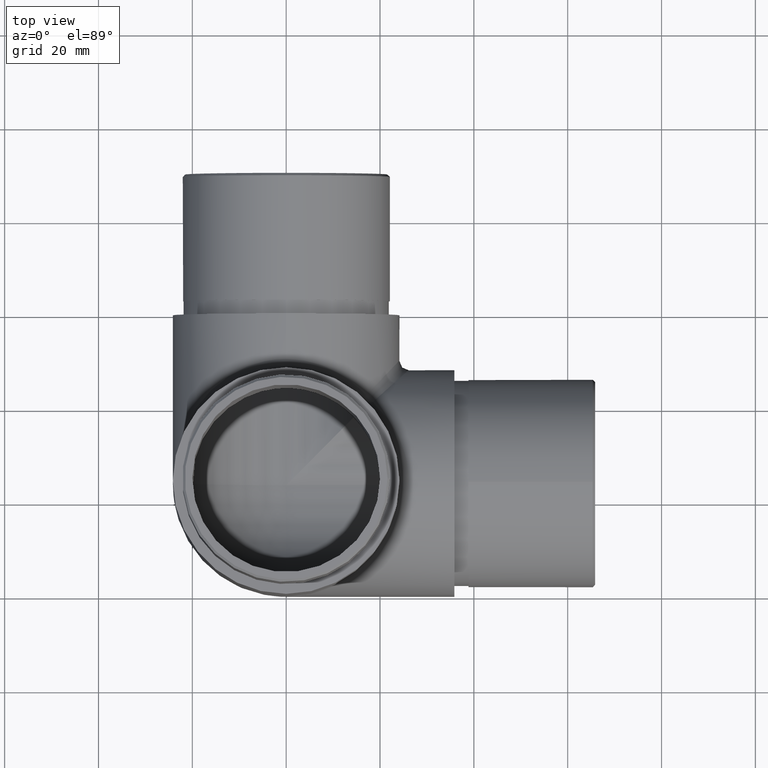
[diagram: clean part render]
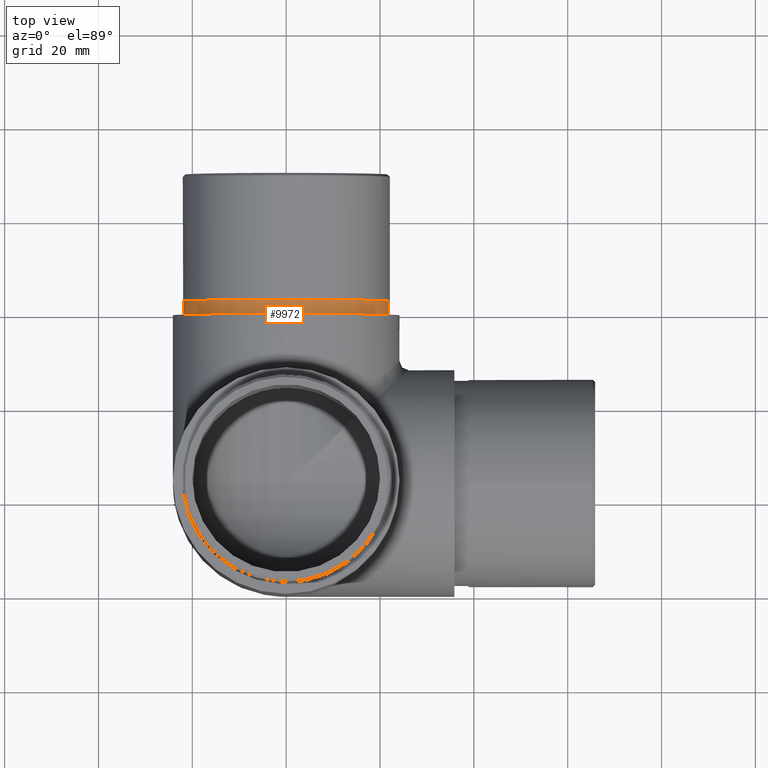
[diagram: same view with one face highlighted and labeled with its STEP entity id]
A machine part, top view. The second image highlights one B-rep face of the part: STEP entity #9972.
In plain terms, the highlighted cylindrical surface (bore or boss wall) has radius 21.9 mm, axis along (-0, -1, 0).
Its self-contained STEP definition (entity closure, byte-faithful):
#184 = DIRECTION ( 'NONE',  ( 0.0000000000000000000, -6.336889409960939200E-016, -1.000000000000000000 ) ) ;
#315 = DIRECTION ( 'NONE',  ( -0.0000000000000000000, -1.000000000000000000, 4.440892098500624700E-016 ) ) ;
#1125 = DIRECTION ( 'NONE',  ( 0.0000000000000000000, 0.0000000000000000000, 1.000000000000000000 ) ) ;
#1210 = CARTESIAN_POINT ( 'NONE',  ( 0.0000000000000000000, 60.00000000000000000, 24.14999999999997400 ) ) ;
#1569 = CARTESIAN_POINT ( 'NONE',  ( 0.0000000000000000000, 63.00000000000000000, 24.14999999999997400 ) ) ;
#1651 = CIRCLE ( 'NONE', #8674, 21.89999999999999900 ) ;
#1782 = FACE_OUTER_BOUND ( 'NONE', #6556, .T. ) ;
#1815 = AXIS2_PLACEMENT_3D ( 'NONE', #1210, #10199, #1125 ) ;
#1818 = CARTESIAN_POINT ( 'NONE',  ( 0.0000000000000000000, 60.00000000000000000, 46.04999999999997600 ) ) ;
#4582 = DIRECTION ( 'NONE',  ( 0.0000000000000000000, 6.336889409960939200E-016, 1.000000000000000000 ) ) ;
#5009 = CARTESIAN_POINT ( 'NONE',  ( 0.0000000000000000000, 63.00000000000001400, 46.04999999999997600 ) ) ;
#5862 = EDGE_LOOP ( 'NONE', ( #9276 ) ) ;
#6556 = EDGE_LOOP ( 'NONE', ( #12120 ) ) ;
#7762 = EDGE_CURVE ( 'NONE', #11591, #11591, #1651, .T. ) ;
#7848 = AXIS2_PLACEMENT_3D ( 'NONE', #10185, #315, #184 ) ;
#8351 = CIRCLE ( 'NONE', #1815, 21.89999999999999900 ) ;
#8572 = DIRECTION ( 'NONE',  ( -0.0000000000000000000, -1.000000000000000000, 4.440892098500625200E-016 ) ) ;
#8674 = AXIS2_PLACEMENT_3D ( 'NONE', #1569, #8572, #4582 ) ;
#9276 = ORIENTED_EDGE ( 'NONE', *, *, #9557, .T. ) ;
#9431 = FACE_OUTER_BOUND ( 'NONE', #5862, .T. ) ;
#9557 = EDGE_CURVE ( 'NONE', #11919, #11919, #8351, .T. ) ;
#9972 = ADVANCED_FACE ( 'NONE', ( #1782, #9431 ), #12721, .T. ) ;
#10185 = CARTESIAN_POINT ( 'NONE',  ( 0.0000000000000000000, 63.00000000000000000, 24.14999999999997400 ) ) ;
#10199 = DIRECTION ( 'NONE',  ( 0.0000000000000000000, 1.000000000000000000, 0.0000000000000000000 ) ) ;
#11591 = VERTEX_POINT ( 'NONE', #5009 ) ;
#11919 = VERTEX_POINT ( 'NONE', #1818 ) ;
#12120 = ORIENTED_EDGE ( 'NONE', *, *, #7762, .T. ) ;
#12721 = CYLINDRICAL_SURFACE ( 'NONE', #7848, 21.89999999999999900 ) ;